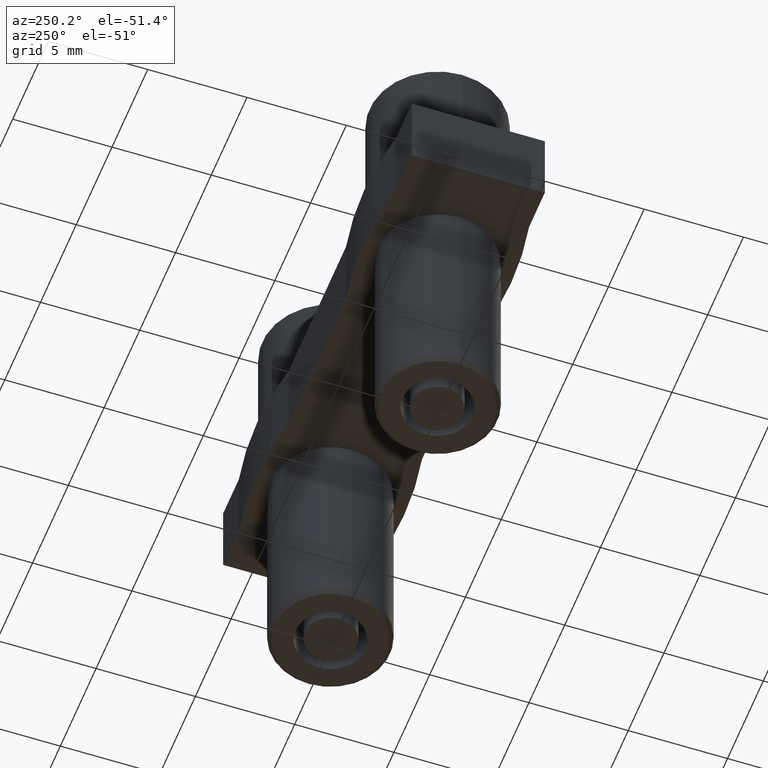
[diagram: clean part render]
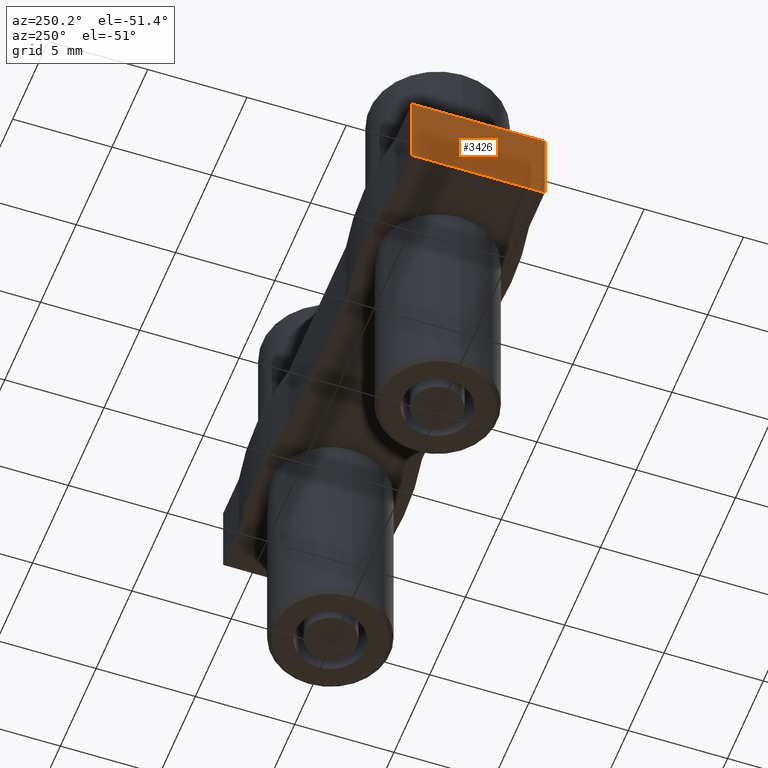
[diagram: same view with one face highlighted and labeled with its STEP entity id]
A machine part, auxiliary view. The second image highlights one B-rep face of the part: STEP entity #3426.
In plain terms, the highlighted planar face has unit normal (1, 0, -0).
Its self-contained STEP definition (entity closure, byte-faithful):
#944 = LINE ( 'NONE', #955, #2794 ) ;
#955 = CARTESIAN_POINT ( 'NONE',  ( -5.699999999999996600, -3.349999999999916600, -0.9000000000000014700 ) ) ;
#957 = DIRECTION ( 'NONE',  ( 0.0000000000000000000, 0.0000000000000000000, -1.000000000000000000 ) ) ;
#1148 = LINE ( 'NONE', #1150, #2899 ) ;
#1149 = LINE ( 'NONE', #1180, #2884 ) ;
#1150 = CARTESIAN_POINT ( 'NONE',  ( -5.700000000000000200, 7.221084286606899400, -4.800000000000001600 ) ) ;
#1152 = DIRECTION ( 'NONE',  ( -2.009125974575783600E-016, 1.000000000000000000, 0.0000000000000000000 ) ) ;
#1165 = DIRECTION ( 'NONE',  ( 0.0000000000000000000, 0.0000000000000000000, -1.000000000000000000 ) ) ;
#1180 = CARTESIAN_POINT ( 'NONE',  ( -5.699999999999999300, 3.350000000000084500, -4.800000000000001600 ) ) ;
#1516 = LINE ( 'NONE', #1519, #3034 ) ;
#1519 = CARTESIAN_POINT ( 'NONE',  ( -5.699999999999996600, -3.349999999999916200, -0.9000000000000014700 ) ) ;
#1520 = DIRECTION ( 'NONE',  ( 2.009125974575783600E-016, -1.000000000000000000, 0.0000000000000000000 ) ) ;
#1740 = FACE_OUTER_BOUND ( 'NONE', #1915, .T. ) ;
#1741 = DIRECTION ( 'NONE',  ( 1.000000000000000000, 2.009125974575783600E-016, -0.0000000000000000000 ) ) ;
#1757 = CARTESIAN_POINT ( 'NONE',  ( -5.700000000000000200, 7.221084286606899400, -4.800000000000001600 ) ) ;
#1758 = PLANE ( 'NONE',  #3074 ) ;
#1761 = DIRECTION ( 'NONE',  ( -2.009125974575783600E-016, 1.000000000000000000, 0.0000000000000000000 ) ) ;
#1854 = CARTESIAN_POINT ( 'NONE',  ( -5.699999999999996600, -3.349999999999916600, -0.9000000000000014700 ) ) ;
#1915 = EDGE_LOOP ( 'NONE', ( #2500, #2527, #2544, #2475 ) ) ;
#2098 = CARTESIAN_POINT ( 'NONE',  ( -5.699999999999996600, -3.349999999999916600, -4.800000000000001600 ) ) ;
#2108 = CARTESIAN_POINT ( 'NONE',  ( -5.700000000000000200, 3.350000000000084500, -0.9000000000000014700 ) ) ;
#2134 = CARTESIAN_POINT ( 'NONE',  ( -5.699999999999996600, 3.350000000000084500, -4.800000000000001600 ) ) ;
#2241 = VERTEX_POINT ( 'NONE', #2134 ) ;
#2278 = VERTEX_POINT ( 'NONE', #2098 ) ;
#2283 = VERTEX_POINT ( 'NONE', #2108 ) ;
#2331 = VERTEX_POINT ( 'NONE', #1854 ) ;
#2475 = ORIENTED_EDGE ( 'NONE', *, *, #3296, .F. ) ;
#2500 = ORIENTED_EDGE ( 'NONE', *, *, #3227, .F. ) ;
#2527 = ORIENTED_EDGE ( 'NONE', *, *, #3395, .F. ) ;
#2544 = ORIENTED_EDGE ( 'NONE', *, *, #3298, .T. ) ;
#2794 = VECTOR ( 'NONE', #957, 1000.000000000000000 ) ;
#2884 = VECTOR ( 'NONE', #1165, 1000.000000000000000 ) ;
#2899 = VECTOR ( 'NONE', #1152, 1000.000000000000000 ) ;
#3034 = VECTOR ( 'NONE', #1520, 1000.000000000000000 ) ;
#3074 = AXIS2_PLACEMENT_3D ( 'NONE', #1757, #1741, #1761 ) ;
#3227 = EDGE_CURVE ( 'NONE', #2331, #2278, #944, .T. ) ;
#3296 = EDGE_CURVE ( 'NONE', #2278, #2241, #1148, .T. ) ;
#3298 = EDGE_CURVE ( 'NONE', #2283, #2241, #1149, .T. ) ;
#3395 = EDGE_CURVE ( 'NONE', #2283, #2331, #1516, .T. ) ;
#3426 = ADVANCED_FACE ( 'NONE', ( #1740 ), #1758, .F. ) ;